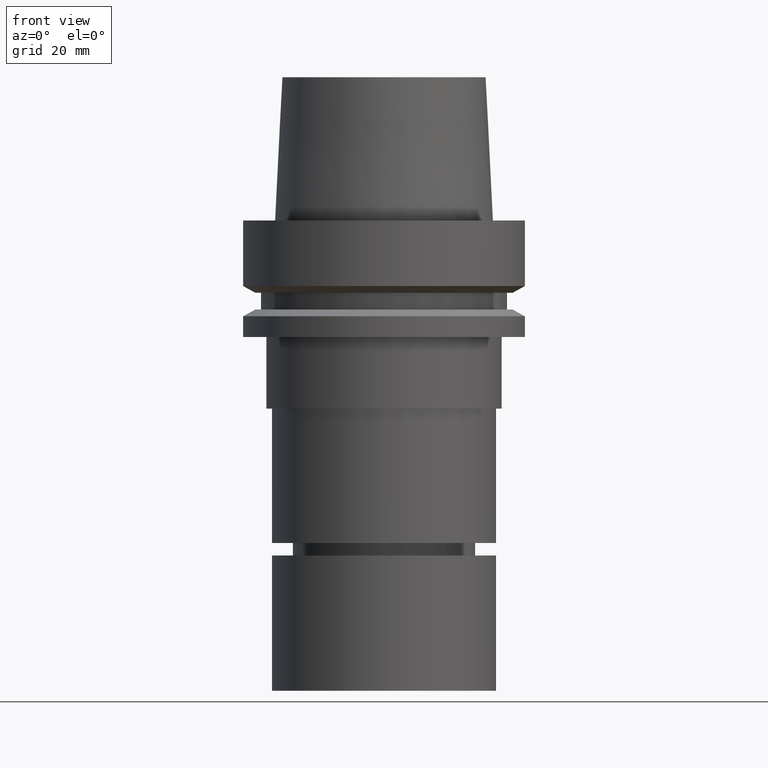
[diagram: clean part render]
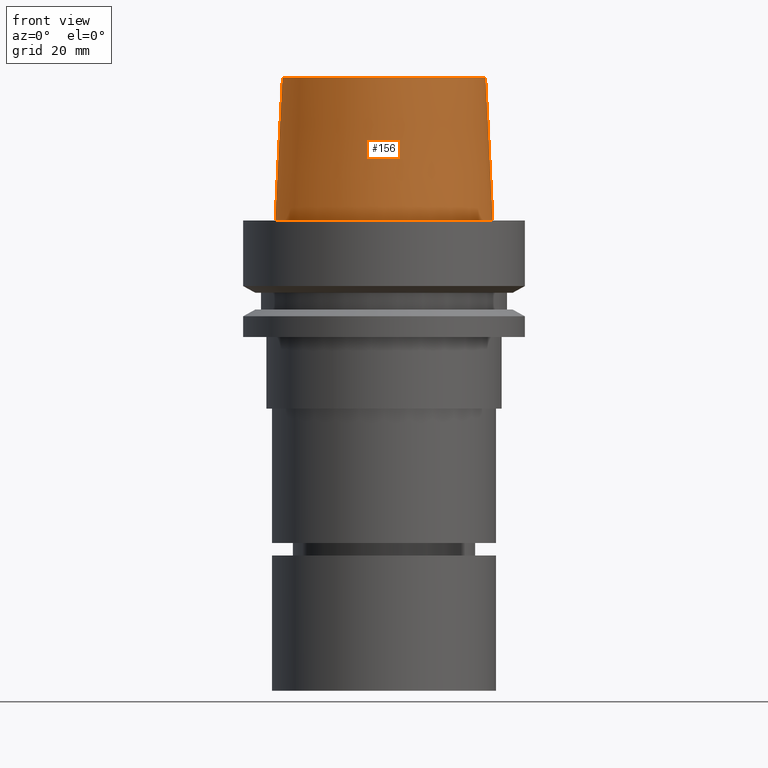
[diagram: same view with one face highlighted and labeled with its STEP entity id]
A machine part, front view. The second image highlights one B-rep face of the part: STEP entity #156.
In plain terms, the highlighted conical surface has half-angle 2.862 deg.
Its self-contained STEP definition (entity closure, byte-faithful):
#100=EDGE_CURVE('Unnamed[1]',#243,#243,#244,.T.);
#115=EDGE_CURVE('Unnamed[1]',#266,#266,#267,.T.);
#156=ADVANCED_FACE('Unnamed[1]',(#331,#332),#333,.T.);
#243=VERTEX_POINT('',#441);
#244=CIRCLE('',#442,22.715);
#266=VERTEX_POINT('',#471);
#267=CIRCLE('',#472,24.315);
#331=FACE_BOUND('',#551,.T.);
#332=FACE_BOUND('',#552,.T.);
#333=CONICAL_SURFACE('',#553,23.515,0.0499583957219433);
#441=CARTESIAN_POINT('',(-1.95943487863576E-015,22.715,32.0));
#442=AXIS2_PLACEMENT_3D('',#657,#658,#659);
#471=CARTESIAN_POINT('',(-2.99705514225764E-031,24.315,2.97772869212679E-015));
#472=AXIS2_PLACEMENT_3D('',#681,#682,#683);
#551=EDGE_LOOP('',(#756));
#552=EDGE_LOOP('',(#757));
#553=AXIS2_PLACEMENT_3D('',#758,#759,#760);
#657=CARTESIAN_POINT('',(-1.95943487863576E-015,-3.91886975727153E-015,32.0));
#658=DIRECTION('',(-6.12323399573676E-017,-1.22464679914735E-016,1.0));
#659=DIRECTION('',(-1.23259516440783E-032,1.0,1.22464679914735E-016));
#681=CARTESIAN_POINT('',(0.0,0.0,0.0));
#682=DIRECTION('',(-6.12323399573677E-017,-1.22464679914735E-016,1.0));
#683=DIRECTION('',(-1.23259516440783E-032,1.0,1.22464679914735E-016));
#756=ORIENTED_EDGE('',*,*,#100,.F.);
#757=ORIENTED_EDGE('',*,*,#115,.T.);
#758=CARTESIAN_POINT('',(-9.79717439317882E-016,-1.95943487863576E-015,16.0));
#759=DIRECTION('',(6.12323399573677E-017,1.22464679914735E-016,-1.0));
#760=DIRECTION('',(-1.23259516440783E-032,1.0,1.22464679914735E-016));